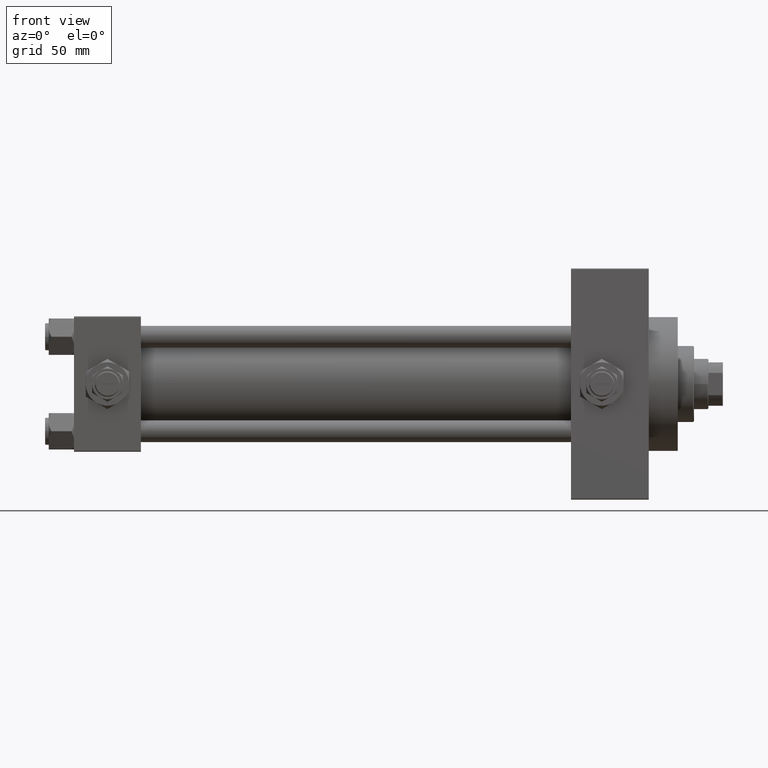
[diagram: clean part render]
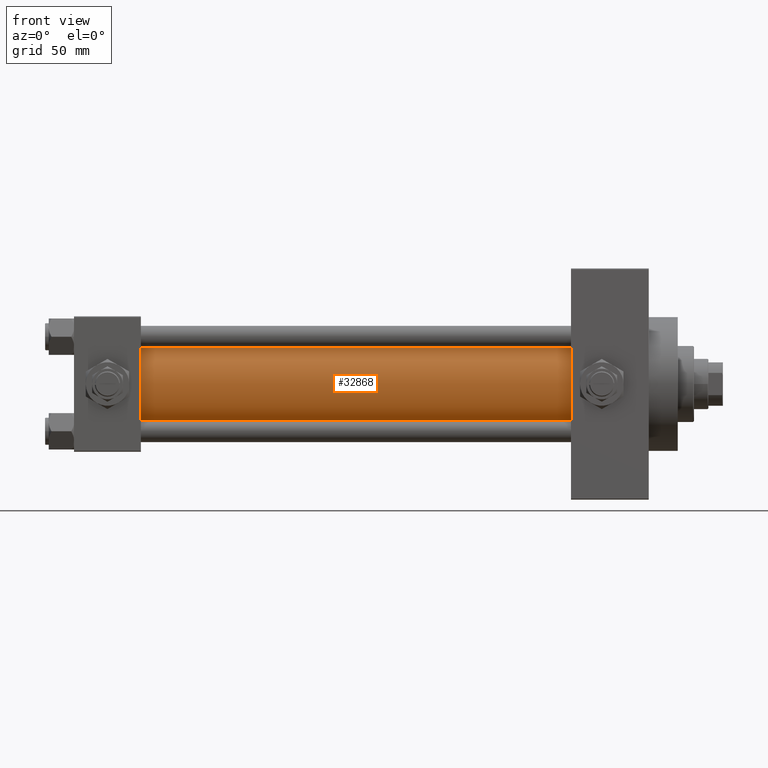
[diagram: same view with one face highlighted and labeled with its STEP entity id]
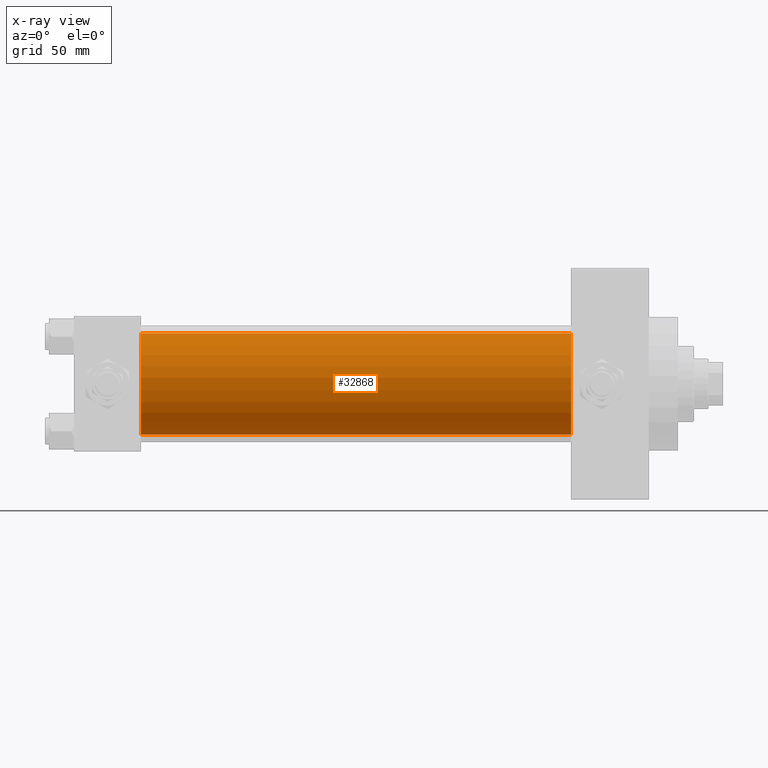
[diagram: x-ray of the same camera — body ghosted, the highlighted face saturated]
A machine part, front view. The second image highlights one B-rep face of the part: STEP entity #32868.
The next image is the same camera in x-ray: the body ghosted, the highlighted face saturated — about 0% of this face is hidden behind the body in this view.
In plain terms, the highlighted cylindrical surface (partial cylindrical patch) has radius 28 mm, axis along (-1, -0, -0).
Its self-contained STEP definition (entity closure, byte-faithful):
#772 = VECTOR ( 'NONE', #47603, 1000.000000000000000 ) ;
#1054 = VERTEX_POINT ( 'NONE', #8750 ) ;
#1596 = LINE ( 'NONE', #39716, #4349 ) ;
#2733 = DIRECTION ( 'NONE',  ( 0.000000000000000000, 0.000000000000000000, -1.000000000000000000 ) ) ;
#3506 = FACE_OUTER_BOUND ( 'NONE', #33781, .T. ) ;
#4349 = VECTOR ( 'NONE', #17288, 1000.000000000000000 ) ;
#5028 = CIRCLE ( 'NONE', #10615, 28.00000000000000000 ) ;
#5868 = ORIENTED_EDGE ( 'NONE', *, *, #7720, .F. ) ;
#6472 = LINE ( 'NONE', #17689, #772 ) ;
#7720 = EDGE_CURVE ( 'NONE', #27069, #44693, #28482, .T. ) ;
#8750 = CARTESIAN_POINT ( 'NONE',  ( 37.00000000000000711, -2.602085213965210642E-15, 28.00000000000000000 ) ) ;
#10615 = AXIS2_PLACEMENT_3D ( 'NONE', #33589, #15133, #33349 ) ;
#10708 = CARTESIAN_POINT ( 'NONE',  ( 274.9999999999999432, -2.602085213965210642E-15, 0.000000000000000000 ) ) ;
#11272 = AXIS2_PLACEMENT_3D ( 'NONE', #18707, #21714, #13960 ) ;
#11797 = CARTESIAN_POINT ( 'NONE',  ( 274.9999999999999432, -2.602085213965210642E-15, 28.00000000000000000 ) ) ;
#13960 = DIRECTION ( 'NONE',  ( 0.000000000000000000, 0.000000000000000000, 1.000000000000000000 ) ) ;
#15133 = DIRECTION ( 'NONE',  ( 1.000000000000000000, -0.000000000000000000, 0.000000000000000000 ) ) ;
#16452 = ORIENTED_EDGE ( 'NONE', *, *, #36582, .T. ) ;
#17288 = DIRECTION ( 'NONE',  ( -1.000000000000000000, -0.000000000000000000, -0.000000000000000000 ) ) ;
#17689 = CARTESIAN_POINT ( 'NONE',  ( 274.9999999999999432, 8.269258236473784371E-16, -28.00000000000000000 ) ) ;
#18707 = CARTESIAN_POINT ( 'NONE',  ( 274.9999999999999432, -2.602085213965210642E-15, 0.000000000000000000 ) ) ;
#21714 = DIRECTION ( 'NONE',  ( -1.000000000000000000, -0.000000000000000000, -0.000000000000000000 ) ) ;
#21965 = CYLINDRICAL_SURFACE ( 'NONE', #11272, 28.00000000000000000 ) ;
#22690 = DIRECTION ( 'NONE',  ( 1.000000000000000000, 0.000000000000000000, 0.000000000000000000 ) ) ;
#23493 = CARTESIAN_POINT ( 'NONE',  ( 37.00000000000000711, 8.269258236473784371E-16, -28.00000000000000000 ) ) ;
#27069 = VERTEX_POINT ( 'NONE', #11797 ) ;
#28482 = CIRCLE ( 'NONE', #39603, 28.00000000000000000 ) ;
#28781 = EDGE_CURVE ( 'NONE', #44693, #29569, #6472, .T. ) ;
#29569 = VERTEX_POINT ( 'NONE', #23493 ) ;
#32868 = ADVANCED_FACE ( 'NONE', ( #3506 ), #21965, .T. ) ;
#33259 = ORIENTED_EDGE ( 'NONE', *, *, #40108, .T. ) ;
#33349 = DIRECTION ( 'NONE',  ( 0.000000000000000000, 0.000000000000000000, 1.000000000000000000 ) ) ;
#33589 = CARTESIAN_POINT ( 'NONE',  ( 37.00000000000000711, -2.602085213965210642E-15, 0.000000000000000000 ) ) ;
#33781 = EDGE_LOOP ( 'NONE', ( #46051, #5868, #33259, #16452 ) ) ;
#36582 = EDGE_CURVE ( 'NONE', #1054, #29569, #5028, .T. ) ;
#39603 = AXIS2_PLACEMENT_3D ( 'NONE', #10708, #22690, #2733 ) ;
#39716 = CARTESIAN_POINT ( 'NONE',  ( 274.9999999999999432, -2.602085213965210642E-15, 28.00000000000000000 ) ) ;
#40108 = EDGE_CURVE ( 'NONE', #27069, #1054, #1596, .T. ) ;
#44693 = VERTEX_POINT ( 'NONE', #47967 ) ;
#46051 = ORIENTED_EDGE ( 'NONE', *, *, #28781, .F. ) ;
#47603 = DIRECTION ( 'NONE',  ( -1.000000000000000000, -0.000000000000000000, -0.000000000000000000 ) ) ;
#47967 = CARTESIAN_POINT ( 'NONE',  ( 274.9999999999999432, 8.269258236473784371E-16, -28.00000000000000000 ) ) ;